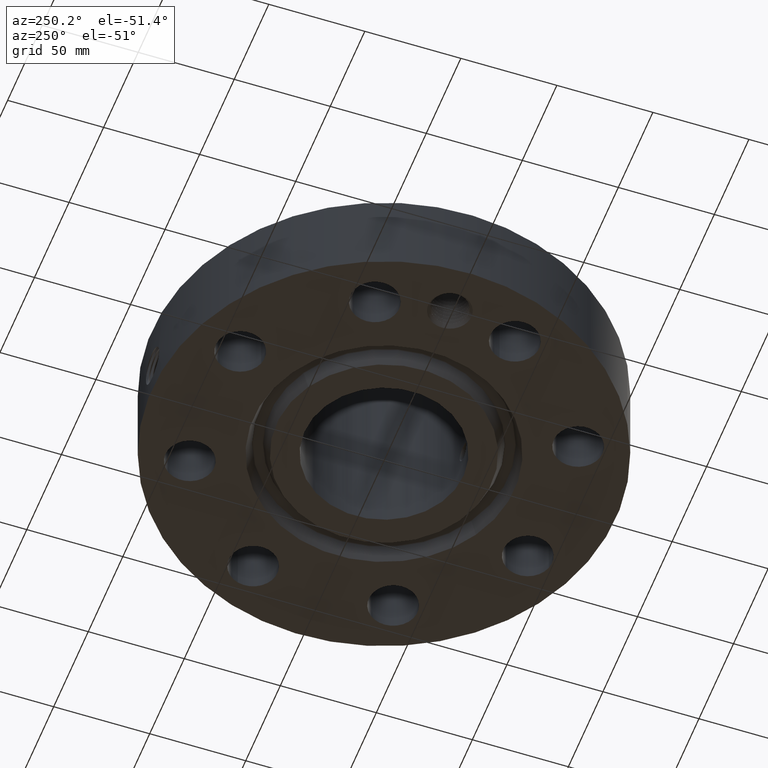
[diagram: clean part render]
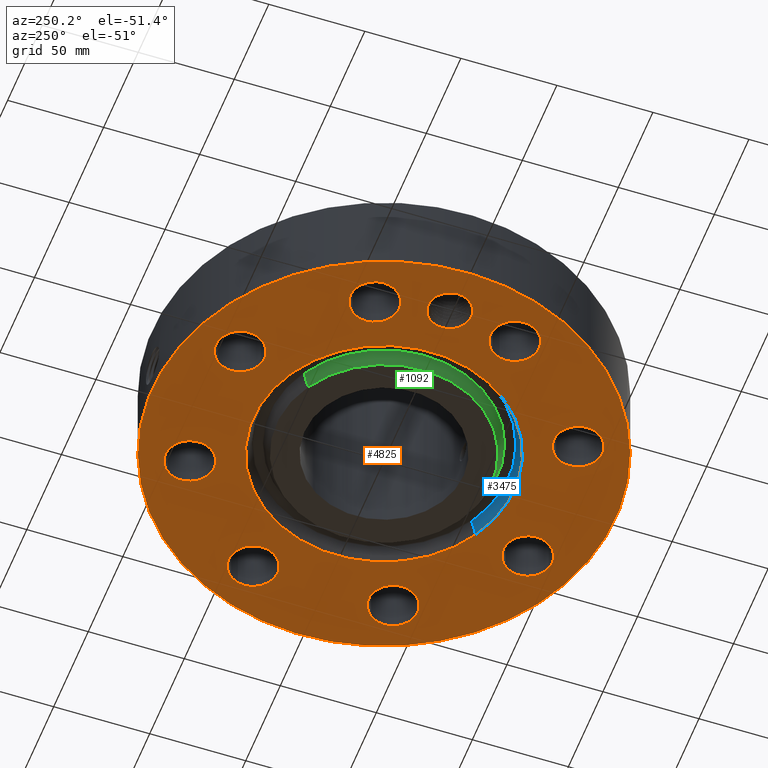
[diagram: same view with three faces highlighted in distinct colors, each labeled with its STEP entity id]
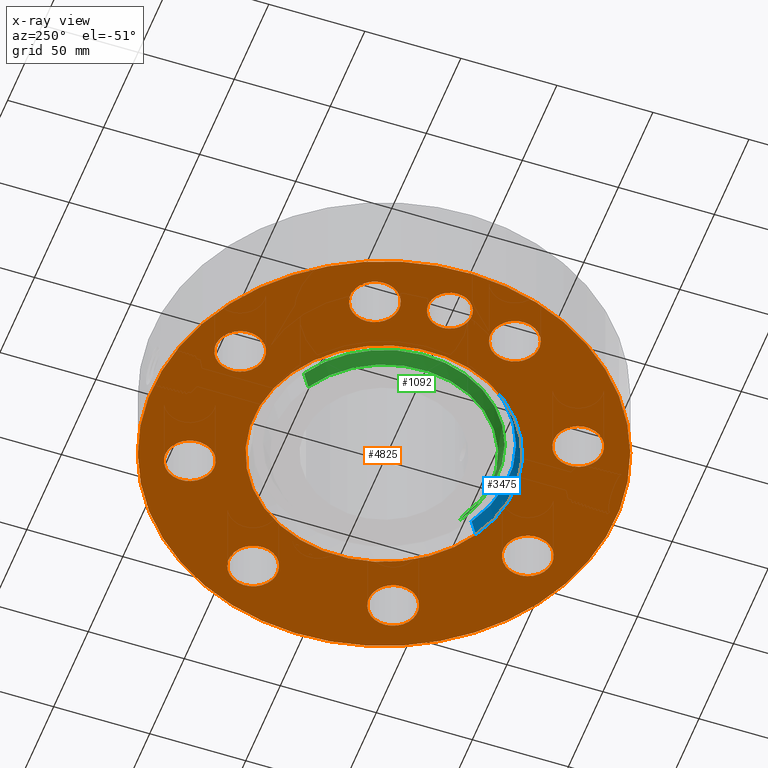
[diagram: x-ray of the same camera — body ghosted, the three highlighted faces saturated]
A machine part, auxiliary view with three faces highlighted in distinct colors.
The next image is the same camera in x-ray (body ghosted, the three faces saturated) — at least one of them is partly hidden behind the body in this view.
Their STEP definitions:

[orange] entity #4825 — the highlighted planar face has unit normal (0, 0, -1).
#598=AXIS2_PLACEMENT_3D('Plane Axis2P3D',#595,#596,#597) ;
#3440=AXIS2_PLACEMENT_3D('Circle Axis2P3D',#3438,#3439,$) ;
#3466=AXIS2_PLACEMENT_3D('Circle Axis2P3D',#3464,#3465,$) ;
#3739=AXIS2_PLACEMENT_3D('Circle Axis2P3D',#3737,#3738,$) ;
#3868=AXIS2_PLACEMENT_3D('Circle Axis2P3D',#3866,#3867,$) ;
#4142=AXIS2_PLACEMENT_3D('Circle Axis2P3D',#4140,#4141,$) ;
#4161=AXIS2_PLACEMENT_3D('Circle Axis2P3D',#4159,#4160,$) ;
#4185=AXIS2_PLACEMENT_3D('Circle Axis2P3D',#4183,#4184,$) ;
#4204=AXIS2_PLACEMENT_3D('Circle Axis2P3D',#4202,#4203,$) ;
#4228=AXIS2_PLACEMENT_3D('Circle Axis2P3D',#4226,#4227,$) ;
#4247=AXIS2_PLACEMENT_3D('Circle Axis2P3D',#4245,#4246,$) ;
#4271=AXIS2_PLACEMENT_3D('Circle Axis2P3D',#4269,#4270,$) ;
#4290=AXIS2_PLACEMENT_3D('Circle Axis2P3D',#4288,#4289,$) ;
#4314=AXIS2_PLACEMENT_3D('Circle Axis2P3D',#4312,#4313,$) ;
#4333=AXIS2_PLACEMENT_3D('Circle Axis2P3D',#4331,#4332,$) ;
#4357=AXIS2_PLACEMENT_3D('Circle Axis2P3D',#4355,#4356,$) ;
#4376=AXIS2_PLACEMENT_3D('Circle Axis2P3D',#4374,#4375,$) ;
#4400=AXIS2_PLACEMENT_3D('Circle Axis2P3D',#4398,#4399,$) ;
#4419=AXIS2_PLACEMENT_3D('Circle Axis2P3D',#4417,#4418,$) ;
#4443=AXIS2_PLACEMENT_3D('Circle Axis2P3D',#4441,#4442,$) ;
#4462=AXIS2_PLACEMENT_3D('Circle Axis2P3D',#4460,#4461,$) ;
#4773=AXIS2_PLACEMENT_3D('Circle Axis2P3D',#4771,#4772,$) ;
#4782=AXIS2_PLACEMENT_3D('Circle Axis2P3D',#4780,#4781,$) ;
#595=CARTESIAN_POINT('Axis2P3D Location',(0.,1.63000000001,0.)) ;
#3438=CARTESIAN_POINT('Axis2P3D Location',(0.,0.,0.)) ;
#3442=CARTESIAN_POINT('Vertex',(-1.28102503916,2.34490060538,0.)) ;
#3444=CARTESIAN_POINT('Vertex',(1.28102503916,-2.34490060538,0.)) ;
#3464=CARTESIAN_POINT('Axis2P3D Location',(0.,0.,0.)) ;
#3737=CARTESIAN_POINT('Axis2P3D Location',(0.,0.,2.79741234551E-016)) ;
#3741=CARTESIAN_POINT('Vertex',(-2.27727130838,-4.168517169,2.79741234551E-016)) ;
#3743=CARTESIAN_POINT('Vertex',(2.27727130838,4.168517169,2.79741234551E-016)) ;
#3866=CARTESIAN_POINT('Axis2P3D Location',(0.,0.,2.79741234551E-016)) ;
#4137=CARTESIAN_POINT('Vertex',(3.90333952788,-1.67477564068,0.)) ;
#4140=CARTESIAN_POINT('Axis2P3D Location',(3.46454824693,-1.43506287137,0.)) ;
#4144=CARTESIAN_POINT('Vertex',(3.02575696598,-1.19535010207,0.)) ;
#4159=CARTESIAN_POINT('Axis2P3D Location',(3.46454824693,-1.43506287137,0.)) ;
#4180=CARTESIAN_POINT('Vertex',(1.2942931058,-2.98477343194,0.)) ;
#4183=CARTESIAN_POINT('Axis2P3D Location',(1.43506287137,-3.46454824693,0.)) ;
#4187=CARTESIAN_POINT('Vertex',(1.57583263695,-3.94432306193,0.)) ;
#4202=CARTESIAN_POINT('Axis2P3D Location',(1.43506287137,-3.46454824693,0.)) ;
#4223=CARTESIAN_POINT('Vertex',(-1.19535010207,-3.02575696598,0.)) ;
#4226=CARTESIAN_POINT('Axis2P3D Location',(-1.43506287137,-3.46454824693,0.)) ;
#4230=CARTESIAN_POINT('Vertex',(-1.67477564068,-3.90333952788,0.)) ;
#4245=CARTESIAN_POINT('Axis2P3D Location',(-1.43506287137,-3.46454824693,0.)) ;
#4266=CARTESIAN_POINT('Vertex',(-2.98477343194,-1.2942931058,0.)) ;
#4269=CARTESIAN_POINT('Axis2P3D Location',(-3.46454824693,-1.43506287137,0.)) ;
#4273=CARTESIAN_POINT('Vertex',(-3.94432306193,-1.57583263695,0.)) ;
#4288=CARTESIAN_POINT('Axis2P3D Location',(-3.46454824693,-1.43506287137,0.)) ;
#4309=CARTESIAN_POINT('Vertex',(-3.02575696598,1.19535010207,0.)) ;
#4312=CARTESIAN_POINT('Axis2P3D Location',(-3.46454824693,1.43506287137,0.)) ;
#4316=CARTESIAN_POINT('Vertex',(-3.90333952788,1.67477564068,0.)) ;
#4331=CARTESIAN_POINT('Axis2P3D Location',(-3.46454824693,1.43506287137,0.)) ;
#4352=CARTESIAN_POINT('Vertex',(-1.2942931058,2.98477343194,0.)) ;
#4355=CARTESIAN_POINT('Axis2P3D Location',(-1.43506287137,3.46454824693,0.)) ;
#4359=CARTESIAN_POINT('Vertex',(-1.57583263695,3.94432306193,0.)) ;
#4374=CARTESIAN_POINT('Axis2P3D Location',(-1.43506287137,3.46454824693,0.)) ;
#4395=CARTESIAN_POINT('Vertex',(1.19535010207,3.02575696598,0.)) ;
#4398=CARTESIAN_POINT('Axis2P3D Location',(1.43506287137,3.46454824693,0.)) ;
#4402=CARTESIAN_POINT('Vertex',(1.67477564068,3.90333952788,0.)) ;
#4417=CARTESIAN_POINT('Axis2P3D Location',(1.43506287137,3.46454824693,0.)) ;
#4438=CARTESIAN_POINT('Vertex',(2.98477343194,1.2942931058,0.)) ;
#4441=CARTESIAN_POINT('Axis2P3D Location',(3.46454824693,1.43506287137,0.)) ;
#4445=CARTESIAN_POINT('Vertex',(3.94432306193,1.57583263695,0.)) ;
#4460=CARTESIAN_POINT('Axis2P3D Location',(3.46454824693,1.43506287137,0.)) ;
#4771=CARTESIAN_POINT('Axis2P3D Location',(-3.75000000002,-2.79741234551E-016,0.)) ;
#4775=CARTESIAN_POINT('Vertex',(-3.36140644161,-0.212289628495,0.)) ;
#4777=CARTESIAN_POINT('Vertex',(-4.13859355842,0.212289628495,0.)) ;
#4780=CARTESIAN_POINT('Axis2P3D Location',(-3.75000000002,-2.79741234551E-016,0.)) ;
#596=DIRECTION('Axis2P3D Direction',(0.,0.,-0.0393700787402)) ;
#597=DIRECTION('Axis2P3D XDirection',(0.0393700787402,0.,0.)) ;
#3439=DIRECTION('Axis2P3D Direction',(0.,0.,-0.0393700787402)) ;
#3465=DIRECTION('Axis2P3D Direction',(0.,0.,-0.0393700787402)) ;
#3738=DIRECTION('Axis2P3D Direction',(0.,0.,-0.0393700787402)) ;
#3867=DIRECTION('Axis2P3D Direction',(0.,0.,-0.0393700787402)) ;
#4141=DIRECTION('Axis2P3D Direction',(0.,-0.,-0.0393700787402)) ;
#4160=DIRECTION('Axis2P3D Direction',(0.,-0.,-0.0393700787402)) ;
#4184=DIRECTION('Axis2P3D Direction',(0.,-0.,-0.0393700787402)) ;
#4203=DIRECTION('Axis2P3D Direction',(0.,-0.,-0.0393700787402)) ;
#4227=DIRECTION('Axis2P3D Direction',(0.,-0.,-0.0393700787402)) ;
#4246=DIRECTION('Axis2P3D Direction',(0.,-0.,-0.0393700787402)) ;
#4270=DIRECTION('Axis2P3D Direction',(-0.,0.,-0.0393700787402)) ;
#4289=DIRECTION('Axis2P3D Direction',(-0.,0.,-0.0393700787402)) ;
#4313=DIRECTION('Axis2P3D Direction',(-0.,0.,-0.0393700787402)) ;
#4332=DIRECTION('Axis2P3D Direction',(-0.,0.,-0.0393700787402)) ;
#4356=DIRECTION('Axis2P3D Direction',(0.,0.,-0.0393700787402)) ;
#4375=DIRECTION('Axis2P3D Direction',(0.,0.,-0.0393700787402)) ;
#4399=DIRECTION('Axis2P3D Direction',(0.,0.,-0.0393700787402)) ;
#4418=DIRECTION('Axis2P3D Direction',(0.,0.,-0.0393700787402)) ;
#4442=DIRECTION('Axis2P3D Direction',(0.,0.,-0.0393700787402)) ;
#4461=DIRECTION('Axis2P3D Direction',(0.,0.,-0.0393700787402)) ;
#4772=DIRECTION('Axis2P3D Direction',(0.,0.,-0.0393700787402)) ;
#4781=DIRECTION('Axis2P3D Direction',(0.,0.,-0.0393700787402)) ;
#4768=ORIENTED_EDGE('',*,*,#3745,.T.) ;
#4769=ORIENTED_EDGE('',*,*,#3870,.T.) ;
#4786=ORIENTED_EDGE('',*,*,#4779,.F.) ;
#4787=ORIENTED_EDGE('',*,*,#4784,.F.) ;
#4790=ORIENTED_EDGE('',*,*,#4146,.F.) ;
#4791=ORIENTED_EDGE('',*,*,#4163,.F.) ;
#4794=ORIENTED_EDGE('',*,*,#4189,.F.) ;
#4795=ORIENTED_EDGE('',*,*,#4206,.F.) ;
#4798=ORIENTED_EDGE('',*,*,#4232,.F.) ;
#4799=ORIENTED_EDGE('',*,*,#4249,.F.) ;
#4802=ORIENTED_EDGE('',*,*,#4275,.F.) ;
#4803=ORIENTED_EDGE('',*,*,#4292,.F.) ;
#4806=ORIENTED_EDGE('',*,*,#4318,.F.) ;
#4807=ORIENTED_EDGE('',*,*,#4335,.F.) ;
#4810=ORIENTED_EDGE('',*,*,#4361,.F.) ;
#4811=ORIENTED_EDGE('',*,*,#4378,.F.) ;
#4814=ORIENTED_EDGE('',*,*,#4404,.F.) ;
#4815=ORIENTED_EDGE('',*,*,#4421,.F.) ;
#4818=ORIENTED_EDGE('',*,*,#4447,.F.) ;
#4819=ORIENTED_EDGE('',*,*,#4464,.F.) ;
#4822=ORIENTED_EDGE('',*,*,#3468,.F.) ;
#4823=ORIENTED_EDGE('',*,*,#3446,.F.) ;
#4788=FACE_BOUND('',#4785,.T.) ;
#4792=FACE_BOUND('',#4789,.T.) ;
#4796=FACE_BOUND('',#4793,.T.) ;
#4800=FACE_BOUND('',#4797,.T.) ;
#4804=FACE_BOUND('',#4801,.T.) ;
#4808=FACE_BOUND('',#4805,.T.) ;
#4812=FACE_BOUND('',#4809,.T.) ;
#4816=FACE_BOUND('',#4813,.T.) ;
#4820=FACE_BOUND('',#4817,.T.) ;
#4824=FACE_BOUND('',#4821,.T.) ;
#4825=ADVANCED_FACE('PartBody',(#4770,#4788,#4792,#4796,#4800,#4804,#4808,#4812,#4816,#4820,#4824),#599,.T.) ;
#3441=CIRCLE('generated circle',#3440,2.67200000001) ;
#3467=CIRCLE('generated circle',#3466,2.67200000001) ;
#3740=CIRCLE('generated circle',#3739,4.75000000002) ;
#3869=CIRCLE('generated circle',#3868,4.75000000002) ;
#4143=CIRCLE('generated circle',#4142,0.500000000002) ;
#4162=CIRCLE('generated circle',#4161,0.500000000002) ;
#4186=CIRCLE('generated circle',#4185,0.500000000002) ;
#4205=CIRCLE('generated circle',#4204,0.500000000002) ;
#4229=CIRCLE('generated circle',#4228,0.500000000002) ;
#4248=CIRCLE('generated circle',#4247,0.500000000002) ;
#4272=CIRCLE('generated circle',#4271,0.500000000002) ;
#4291=CIRCLE('generated circle',#4290,0.500000000002) ;
#4315=CIRCLE('generated circle',#4314,0.500000000002) ;
#4334=CIRCLE('generated circle',#4333,0.500000000002) ;
#4358=CIRCLE('generated circle',#4357,0.500000000002) ;
#4377=CIRCLE('generated circle',#4376,0.500000000002) ;
#4401=CIRCLE('generated circle',#4400,0.500000000002) ;
#4420=CIRCLE('generated circle',#4419,0.500000000002) ;
#4444=CIRCLE('generated circle',#4443,0.500000000002) ;
#4463=CIRCLE('generated circle',#4462,0.500000000002) ;
#4774=CIRCLE('generated circle',#4773,0.442800000002) ;
#4783=CIRCLE('generated circle',#4782,0.442800000002) ;
#3446=EDGE_CURVE('',#3443,#3445,#3441,.T.) ;
#3468=EDGE_CURVE('',#3445,#3443,#3467,.T.) ;
#3745=EDGE_CURVE('',#3742,#3744,#3740,.T.) ;
#3870=EDGE_CURVE('',#3744,#3742,#3869,.T.) ;
#4146=EDGE_CURVE('',#4138,#4145,#4143,.T.) ;
#4163=EDGE_CURVE('',#4145,#4138,#4162,.T.) ;
#4189=EDGE_CURVE('',#4181,#4188,#4186,.T.) ;
#4206=EDGE_CURVE('',#4188,#4181,#4205,.T.) ;
#4232=EDGE_CURVE('',#4224,#4231,#4229,.T.) ;
#4249=EDGE_CURVE('',#4231,#4224,#4248,.T.) ;
#4275=EDGE_CURVE('',#4267,#4274,#4272,.T.) ;
#4292=EDGE_CURVE('',#4274,#4267,#4291,.T.) ;
#4318=EDGE_CURVE('',#4310,#4317,#4315,.T.) ;
#4335=EDGE_CURVE('',#4317,#4310,#4334,.T.) ;
#4361=EDGE_CURVE('',#4353,#4360,#4358,.T.) ;
#4378=EDGE_CURVE('',#4360,#4353,#4377,.T.) ;
#4404=EDGE_CURVE('',#4396,#4403,#4401,.T.) ;
#4421=EDGE_CURVE('',#4403,#4396,#4420,.T.) ;
#4447=EDGE_CURVE('',#4439,#4446,#4444,.T.) ;
#4464=EDGE_CURVE('',#4446,#4439,#4463,.T.) ;
#4779=EDGE_CURVE('',#4776,#4778,#4774,.T.) ;
#4784=EDGE_CURVE('',#4778,#4776,#4783,.T.) ;
#4767=EDGE_LOOP('',(#4768,#4769)) ;
#4785=EDGE_LOOP('',(#4786,#4787)) ;
#4789=EDGE_LOOP('',(#4790,#4791)) ;
#4793=EDGE_LOOP('',(#4794,#4795)) ;
#4797=EDGE_LOOP('',(#4798,#4799)) ;
#4801=EDGE_LOOP('',(#4802,#4803)) ;
#4805=EDGE_LOOP('',(#4806,#4807)) ;
#4809=EDGE_LOOP('',(#4810,#4811)) ;
#4813=EDGE_LOOP('',(#4814,#4815)) ;
#4817=EDGE_LOOP('',(#4818,#4819)) ;
#4821=EDGE_LOOP('',(#4822,#4823)) ;
#4770=FACE_OUTER_BOUND('',#4767,.T.) ;
#599=PLANE('',#598) ;
#3443=VERTEX_POINT('',#3442) ;
#3445=VERTEX_POINT('',#3444) ;
#3742=VERTEX_POINT('',#3741) ;
#3744=VERTEX_POINT('',#3743) ;
#4138=VERTEX_POINT('',#4137) ;
#4145=VERTEX_POINT('',#4144) ;
#4181=VERTEX_POINT('',#4180) ;
#4188=VERTEX_POINT('',#4187) ;
#4224=VERTEX_POINT('',#4223) ;
#4231=VERTEX_POINT('',#4230) ;
#4267=VERTEX_POINT('',#4266) ;
#4274=VERTEX_POINT('',#4273) ;
#4310=VERTEX_POINT('',#4309) ;
#4317=VERTEX_POINT('',#4316) ;
#4353=VERTEX_POINT('',#4352) ;
#4360=VERTEX_POINT('',#4359) ;
#4396=VERTEX_POINT('',#4395) ;
#4403=VERTEX_POINT('',#4402) ;
#4439=VERTEX_POINT('',#4438) ;
#4446=VERTEX_POINT('',#4445) ;
#4776=VERTEX_POINT('',#4775) ;
#4778=VERTEX_POINT('',#4777) ;

[blue] entity #3475 — the highlighted conical surface has half-angle 23 deg.
#2635=AXIS2_PLACEMENT_3D('Circle Axis2P3D',#2633,#2634,$) ;
#3436=AXIS2_PLACEMENT_3D('Cone Axis2P3D',#3433,#3434,#3435) ;
#3466=AXIS2_PLACEMENT_3D('Circle Axis2P3D',#3464,#3465,$) ;
#2611=CARTESIAN_POINT('Vertex',(1.22125143094,-2.23548574945,0.293721933856)) ;
#2613=CARTESIAN_POINT('Vertex',(-1.22125143094,2.23548574945,0.293721933856)) ;
#2633=CARTESIAN_POINT('Axis2P3D Location',(0.,0.,0.293721933856)) ;
#3433=CARTESIAN_POINT('Axis2P3D Location',(0.,0.,0.293721933856)) ;
#3442=CARTESIAN_POINT('Vertex',(-1.28102503916,2.34490060538,0.)) ;
#3444=CARTESIAN_POINT('Vertex',(1.28102503916,-2.34490060538,0.)) ;
#3447=CARTESIAN_POINT('Line Origine',(1.25113823505,-2.29019317742,0.146860966928)) ;
#3452=CARTESIAN_POINT('Line Origine',(-1.25113823505,2.29019317742,0.146860966928)) ;
#3464=CARTESIAN_POINT('Axis2P3D Location',(0.,0.,0.)) ;
#2634=DIRECTION('Axis2P3D Direction',(0.,0.,0.0393700787402)) ;
#3434=DIRECTION('Axis2P3D Direction',(-0.,-0.,-0.0393700787402)) ;
#3435=DIRECTION('Axis2P3D XDirection',(0.0188750212049,-0.0345504945626,0.)) ;
#3448=DIRECTION('Vector Direction',(0.00737505833565,-0.0134999537303,-0.0362403485611)) ;
#3453=DIRECTION('Vector Direction',(-0.00737505833565,0.0134999537303,-0.0362403485611)) ;
#3465=DIRECTION('Axis2P3D Direction',(0.,0.,-0.0393700787402)) ;
#3449=VECTOR('Line Direction',#3448,0.0393700787402) ;
#3454=VECTOR('Line Direction',#3453,0.0393700787402) ;
#3470=ORIENTED_EDGE('',*,*,#3468,.T.) ;
#3471=ORIENTED_EDGE('',*,*,#3456,.T.) ;
#3472=ORIENTED_EDGE('',*,*,#2637,.T.) ;
#3473=ORIENTED_EDGE('',*,*,#3451,.F.) ;
#3475=ADVANCED_FACE('PartBody',(#3474),#3437,.F.) ;
#2636=CIRCLE('generated circle',#2635,2.54732243612) ;
#3467=CIRCLE('generated circle',#3466,2.67200000001) ;
#3437=CONICAL_SURFACE('Cone',#3436,2.54732243612,0.401425727959) ;
#2637=EDGE_CURVE('',#2614,#2612,#2636,.T.) ;
#3451=EDGE_CURVE('',#3445,#2612,#3450,.F.) ;
#3456=EDGE_CURVE('',#3443,#2614,#3455,.F.) ;
#3468=EDGE_CURVE('',#3445,#3443,#3467,.T.) ;
#3469=EDGE_LOOP('',(#3470,#3471,#3472,#3473)) ;
#3474=FACE_OUTER_BOUND('',#3469,.T.) ;
#3450=LINE('Line',#3447,#3449) ;
#3455=LINE('Line',#3452,#3454) ;
#2612=VERTEX_POINT('',#2611) ;
#2614=VERTEX_POINT('',#2613) ;
#3443=VERTEX_POINT('',#3442) ;
#3445=VERTEX_POINT('',#3444) ;

[green] entity #1092 — the highlighted conical surface has half-angle 23 deg.
#611=AXIS2_PLACEMENT_3D('Circle Axis2P3D',#609,#610,$) ;
#1053=AXIS2_PLACEMENT_3D('Cone Axis2P3D',#1050,#1051,#1052) ;
#1083=AXIS2_PLACEMENT_3D('Circle Axis2P3D',#1081,#1082,$) ;
#604=CARTESIAN_POINT('Vertex',(-1.05617446155,1.93331438385,-3.49676543189E-017)) ;
#606=CARTESIAN_POINT('Vertex',(1.05617446155,-1.93331438385,0.)) ;
#609=CARTESIAN_POINT('Axis2P3D Location',(1.1189649382E-015,-2.79741234551E-016,0.)) ;
#1050=CARTESIAN_POINT('Axis2P3D Location',(0.,0.,-0.0600000000002)) ;
#1055=CARTESIAN_POINT('Line Origine',(-1.08606126566,1.98802181182,0.146860966928)) ;
#1059=CARTESIAN_POINT('Vertex',(-1.11594806977,2.04272923978,0.293721933856)) ;
#1066=CARTESIAN_POINT('Vertex',(1.11594806977,-2.04272923978,0.293721933856)) ;
#1069=CARTESIAN_POINT('Line Origine',(1.08606126566,-1.98802181182,0.146860966928)) ;
#1081=CARTESIAN_POINT('Axis2P3D Location',(0.,0.,0.293721933856)) ;
#610=DIRECTION('Axis2P3D Direction',(0.,0.,-0.0393700787402)) ;
#1051=DIRECTION('Axis2P3D Direction',(0.,0.,0.0393700787402)) ;
#1052=DIRECTION('Axis2P3D XDirection',(-0.0188750212049,0.0345504945626,0.)) ;
#1056=DIRECTION('Vector Direction',(-0.00737505833565,0.0134999537303,0.0362403485611)) ;
#1070=DIRECTION('Vector Direction',(0.00737505833565,-0.0134999537303,0.0362403485611)) ;
#1082=DIRECTION('Axis2P3D Direction',(0.,0.,0.0393700787402)) ;
#1057=VECTOR('Line Direction',#1056,0.0393700787402) ;
#1071=VECTOR('Line Direction',#1070,0.0393700787402) ;
#1087=ORIENTED_EDGE('',*,*,#1073,.F.) ;
#1088=ORIENTED_EDGE('',*,*,#1085,.F.) ;
#1089=ORIENTED_EDGE('',*,*,#1061,.T.) ;
#1090=ORIENTED_EDGE('',*,*,#613,.F.) ;
#1092=ADVANCED_FACE('PartBody',(#1091),#1054,.T.) ;
#612=CIRCLE('generated circle',#611,2.20300000001) ;
#1084=CIRCLE('generated circle',#1083,2.3276775639) ;
#1054=CONICAL_SURFACE('Cone',#1053,2.17753151104,0.401425727959) ;
#613=EDGE_CURVE('',#607,#605,#612,.T.) ;
#1061=EDGE_CURVE('',#1060,#605,#1058,.F.) ;
#1073=EDGE_CURVE('',#1067,#607,#1072,.F.) ;
#1085=EDGE_CURVE('',#1060,#1067,#1084,.T.) ;
#1086=EDGE_LOOP('',(#1087,#1088,#1089,#1090)) ;
#1091=FACE_OUTER_BOUND('',#1086,.T.) ;
#1058=LINE('Line',#1055,#1057) ;
#1072=LINE('Line',#1069,#1071) ;
#605=VERTEX_POINT('',#604) ;
#607=VERTEX_POINT('',#606) ;
#1060=VERTEX_POINT('',#1059) ;
#1067=VERTEX_POINT('',#1066) ;